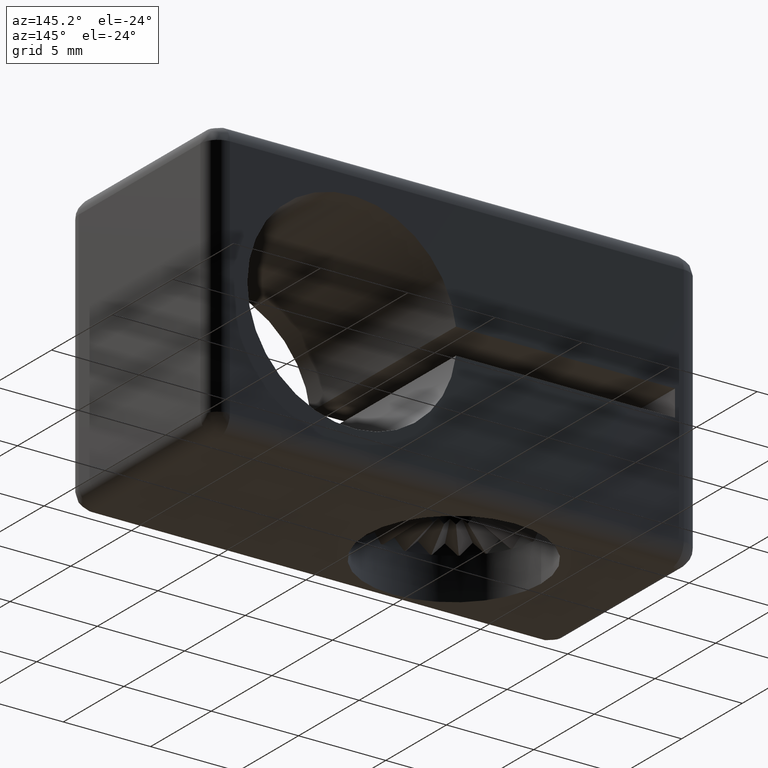
[diagram: clean part render]
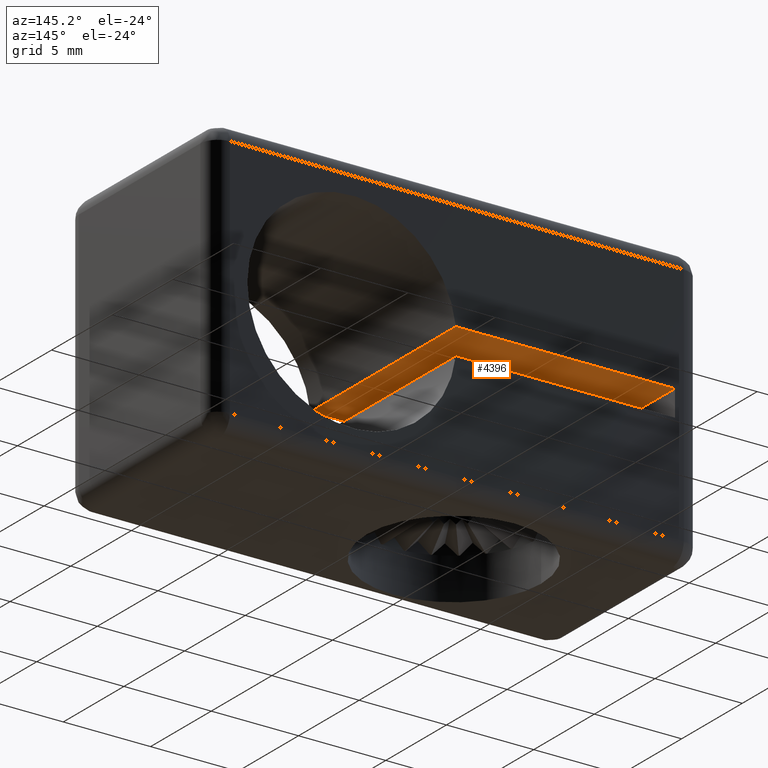
[diagram: same view with one face highlighted and labeled with its STEP entity id]
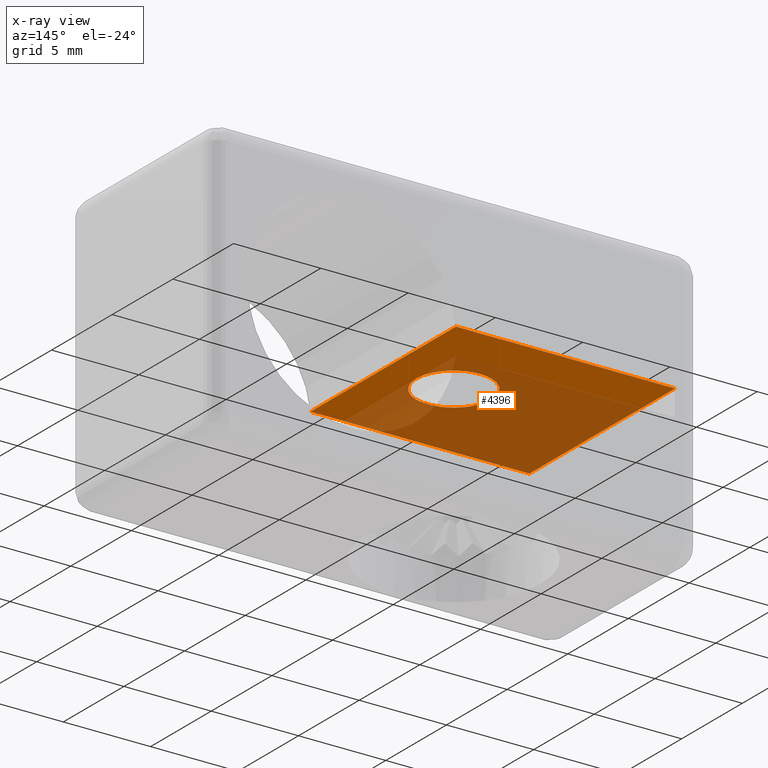
[diagram: x-ray of the same camera — body ghosted, the highlighted face saturated]
A machine part, auxiliary view. The second image highlights one B-rep face of the part: STEP entity #4396.
The next image is the same camera in x-ray: the body ghosted, the highlighted face saturated — about 61% of this face is hidden behind the body in this view.
In plain terms, the highlighted planar face has unit normal (-0, -0, 1).
Its self-contained STEP definition (entity closure, byte-faithful):
#126 = AXIS2_PLACEMENT_3D ( 'NONE', #4546, #1569, #664 ) ;
#300 = CARTESIAN_POINT ( 'NONE',  ( -8.500000000000000000, 6.000000000000000000, 8.750000000000000000 ) ) ;
#311 = CARTESIAN_POINT ( 'NONE',  ( -8.500000000000000000, -6.000000000000000900, 8.750000000000000000 ) ) ;
#315 = CARTESIAN_POINT ( 'NONE',  ( 2.149999999999999900, 0.0000000000000000000, 8.750000000000000000 ) ) ;
#406 = EDGE_CURVE ( 'NONE', #1991, #4910, #5184, .T. ) ;
#515 = EDGE_LOOP ( 'NONE', ( #2681, #1523, #3135, #5360 ) ) ;
#664 = DIRECTION ( 'NONE',  ( 1.000000000000000000, 0.0000000000000000000, 0.0000000000000000000 ) ) ;
#700 = FACE_BOUND ( 'NONE', #3368, .T. ) ;
#825 = LINE ( 'NONE', #3657, #3949 ) ;
#1244 = VERTEX_POINT ( 'NONE', #1614 ) ;
#1343 = VERTEX_POINT ( 'NONE', #3108 ) ;
#1518 = CARTESIAN_POINT ( 'NONE',  ( 0.0000000000000000000, 0.0000000000000000000, 8.750000000000000000 ) ) ;
#1523 = ORIENTED_EDGE ( 'NONE', *, *, #2099, .F. ) ;
#1569 = DIRECTION ( 'NONE',  ( -0.0000000000000000000, -0.0000000000000000000, -1.000000000000000000 ) ) ;
#1584 = PLANE ( 'NONE',  #3353 ) ;
#1597 = DIRECTION ( 'NONE',  ( -0.0000000000000000000, -0.0000000000000000000, -1.000000000000000000 ) ) ;
#1605 = VERTEX_POINT ( 'NONE', #311 ) ;
#1614 = CARTESIAN_POINT ( 'NONE',  ( -8.500000000000000000, 6.000000000000000900, 8.750000000000000000 ) ) ;
#1636 = VECTOR ( 'NONE', #1820, 1000.000000000000000 ) ;
#1820 = DIRECTION ( 'NONE',  ( 1.000000000000000000, 6.672013369141570400E-017, 0.0000000000000000000 ) ) ;
#1858 = FACE_OUTER_BOUND ( 'NONE', #515, .T. ) ;
#1991 = VERTEX_POINT ( 'NONE', #5321 ) ;
#2049 = EDGE_CURVE ( 'NONE', #4910, #1991, #4417, .T. ) ;
#2099 = EDGE_CURVE ( 'NONE', #4501, #1244, #825, .T. ) ;
#2256 = LINE ( 'NONE', #2930, #4026 ) ;
#2430 = DIRECTION ( 'NONE',  ( -6.912868585063559600E-017, -4.612275161866289900E-033, 1.000000000000000000 ) ) ;
#2468 = ORIENTED_EDGE ( 'NONE', *, *, #406, .F. ) ;
#2616 = DIRECTION ( 'NONE',  ( 6.672013369141570400E-017, -1.000000000000000000, 0.0000000000000000000 ) ) ;
#2620 = CARTESIAN_POINT ( 'NONE',  ( 4.047059550104670200, 6.000000000000000000, 8.750000000000000000 ) ) ;
#2681 = ORIENTED_EDGE ( 'NONE', *, *, #4932, .F. ) ;
#2903 = EDGE_CURVE ( 'NONE', #1605, #1343, #2912, .T. ) ;
#2912 = LINE ( 'NONE', #4398, #1636 ) ;
#2930 = CARTESIAN_POINT ( 'NONE',  ( -8.500000000000000000, 6.000000000000000000, 8.750000000000000000 ) ) ;
#3108 = CARTESIAN_POINT ( 'NONE',  ( 4.047059550104672000, -6.000000000000000000, 8.750000000000000000 ) ) ;
#3135 = ORIENTED_EDGE ( 'NONE', *, *, #3308, .T. ) ;
#3308 = EDGE_CURVE ( 'NONE', #4501, #1343, #4667, .T. ) ;
#3353 = AXIS2_PLACEMENT_3D ( 'NONE', #300, #2430, #3756 ) ;
#3368 = EDGE_LOOP ( 'NONE', ( #4905, #2468 ) ) ;
#3657 = CARTESIAN_POINT ( 'NONE',  ( -8.999999999999989300, 6.000000000000000000, 8.750000000000000000 ) ) ;
#3660 = VECTOR ( 'NONE', #2616, 1000.000000000000000 ) ;
#3756 = DIRECTION ( 'NONE',  ( 1.000000000000000000, 0.0000000000000000000, 6.912868585063559600E-017 ) ) ;
#3949 = VECTOR ( 'NONE', #4526, 1000.000000000000000 ) ;
#4026 = VECTOR ( 'NONE', #4610, 1000.000000000000000 ) ;
#4396 = ADVANCED_FACE ( 'NONE', ( #700, #1858 ), #1584, .F. ) ;
#4398 = CARTESIAN_POINT ( 'NONE',  ( -8.999999999999989300, -6.000000000000000000, 8.750000000000000000 ) ) ;
#4417 = CIRCLE ( 'NONE', #126, 2.149999999999999900 ) ;
#4501 = VERTEX_POINT ( 'NONE', #2620 ) ;
#4526 = DIRECTION ( 'NONE',  ( -1.000000000000000000, -3.336006684570780300E-017, 0.0000000000000000000 ) ) ;
#4528 = DIRECTION ( 'NONE',  ( 1.000000000000000000, 0.0000000000000000000, 0.0000000000000000000 ) ) ;
#4546 = CARTESIAN_POINT ( 'NONE',  ( 0.0000000000000000000, 0.0000000000000000000, 8.750000000000000000 ) ) ;
#4610 = DIRECTION ( 'NONE',  ( 3.188405207213442000E-049, -1.000000000000000000, -4.612275161866289900E-033 ) ) ;
#4667 = LINE ( 'NONE', #5305, #3660 ) ;
#4905 = ORIENTED_EDGE ( 'NONE', *, *, #2049, .F. ) ;
#4910 = VERTEX_POINT ( 'NONE', #315 ) ;
#4932 = EDGE_CURVE ( 'NONE', #1244, #1605, #2256, .T. ) ;
#5184 = CIRCLE ( 'NONE', #5299, 2.149999999999999900 ) ;
#5299 = AXIS2_PLACEMENT_3D ( 'NONE', #1518, #1597, #4528 ) ;
#5305 = CARTESIAN_POINT ( 'NONE',  ( 4.047059550104671100, 6.000000000000000000, 8.750000000000000000 ) ) ;
#5321 = CARTESIAN_POINT ( 'NONE',  ( -2.149999999999999900, 2.632990618166809200E-016, 8.750000000000000000 ) ) ;
#5360 = ORIENTED_EDGE ( 'NONE', *, *, #2903, .F. ) ;